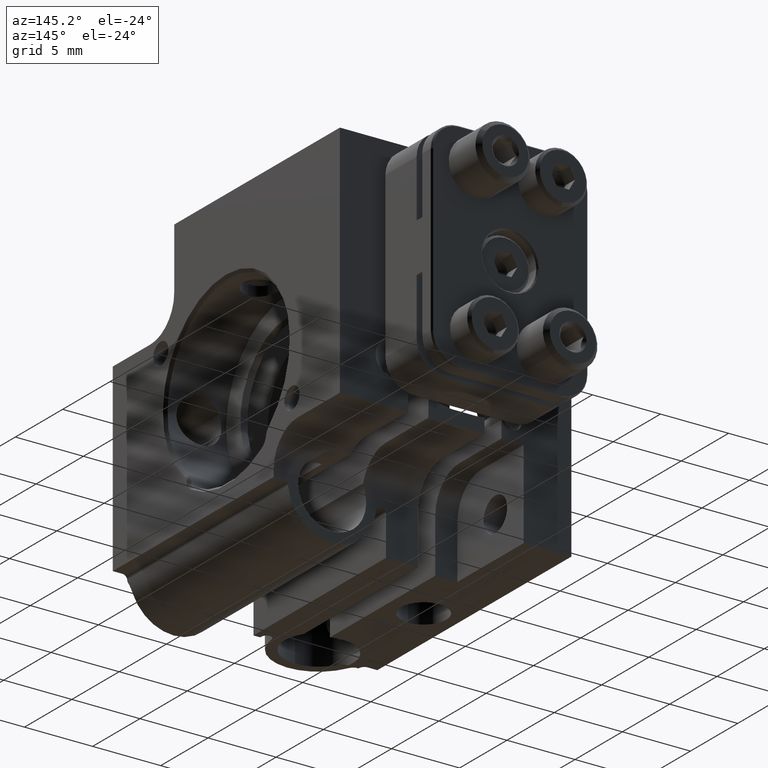
[diagram: clean part render]
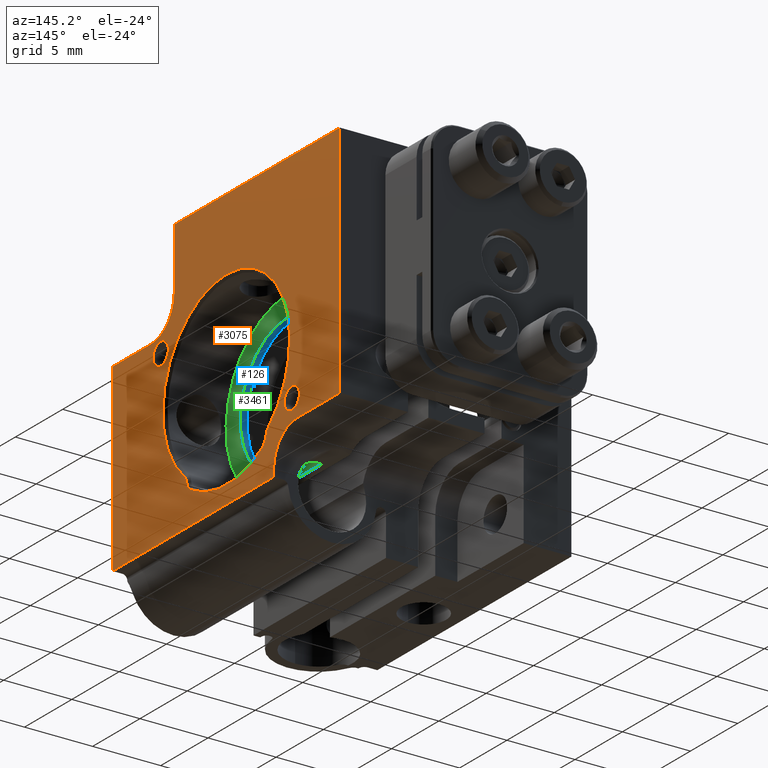
[diagram: same view with three faces highlighted in distinct colors, each labeled with its STEP entity id]
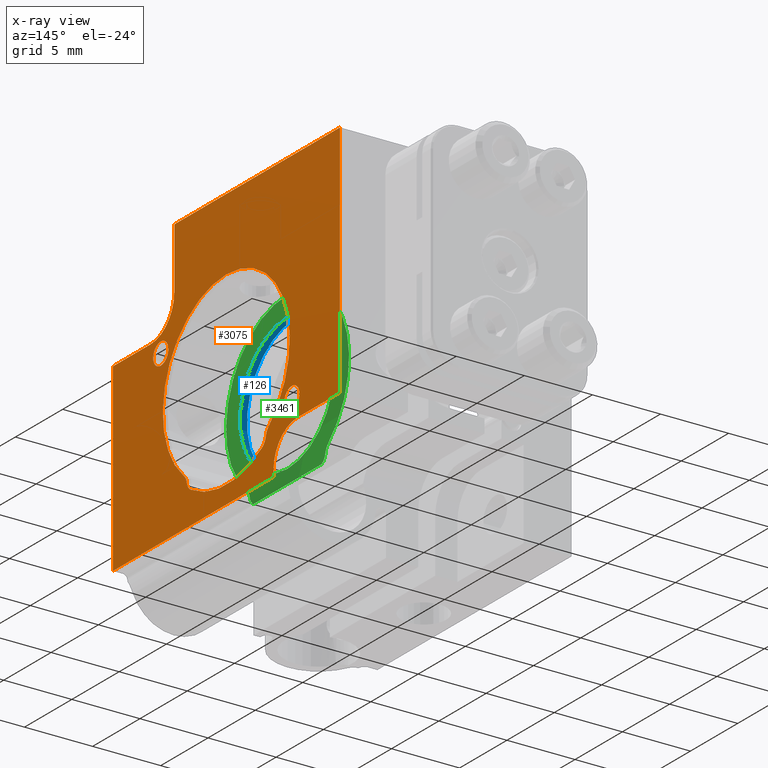
[diagram: x-ray of the same camera — body ghosted, the three highlighted faces saturated]
A machine part, auxiliary view with three faces highlighted in distinct colors.
The next image is the same camera in x-ray (body ghosted, the three faces saturated) — at least one of them is partly hidden behind the body in this view.
Their STEP definitions:

[orange] entity #3075 — the highlighted planar face has unit normal (1, 0, -0).
#40 = EDGE_CURVE ( 'NONE', #2702, #11322, #1248, .T. ) ;
#102 = CIRCLE ( 'NONE', #1552, 0.7999999999999986011 ) ;
#157 = DIRECTION ( 'NONE',  ( 0.000000000000000000, -7.228014483236695816E-17, 1.000000000000000000 ) ) ;
#194 = VERTEX_POINT ( 'NONE', #2159 ) ;
#220 = FACE_OUTER_BOUND ( 'NONE', #3598, .T. ) ;
#297 = CARTESIAN_POINT ( 'NONE',  ( 8.500000000000000000, -0.6422176136940526137, 8.687646340299309600 ) ) ;
#305 = EDGE_CURVE ( 'NONE', #5641, #10667, #6396, .T. ) ;
#319 = VERTEX_POINT ( 'NONE', #4273 ) ;
#338 = EDGE_LOOP ( 'NONE', ( #4403, #1269 ) ) ;
#504 = ORIENTED_EDGE ( 'NONE', *, *, #1851, .T. ) ;
#549 = DIRECTION ( 'NONE',  ( 0.000000000000000000, 0.000000000000000000, 1.000000000000000000 ) ) ;
#564 = DIRECTION ( 'NONE',  ( 0.000000000000000000, -1.826024711554531645E-15, 1.000000000000000000 ) ) ;
#606 = AXIS2_PLACEMENT_3D ( 'NONE', #6366, #7400, #6484 ) ;
#661 = CARTESIAN_POINT ( 'NONE',  ( 8.500000000000000000, 18.85778238630594572, 15.18764634029931138 ) ) ;
#702 = CARTESIAN_POINT ( 'NONE',  ( 8.500000000000000000, 18.85778238630594927, 12.68764634029931138 ) ) ;
#703 = DIRECTION ( 'NONE',  ( 0.000000000000000000, 3.652049423109063291E-15, 1.000000000000000000 ) ) ;
#847 = VERTEX_POINT ( 'NONE', #7446 ) ;
#865 = DIRECTION ( 'NONE',  ( 0.000000000000000000, 0.000000000000000000, 1.000000000000000000 ) ) ;
#900 = CARTESIAN_POINT ( 'NONE',  ( 8.500000000000000000, 16.33677353748944938, 15.07875633278121086 ) ) ;
#1212 = VERTEX_POINT ( 'NONE', #3388 ) ;
#1248 = LINE ( 'NONE', #6265, #1401 ) ;
#1269 = ORIENTED_EDGE ( 'NONE', *, *, #8425, .F. ) ;
#1369 = EDGE_CURVE ( 'NONE', #5864, #9077, #7853, .T. ) ;
#1401 = VECTOR ( 'NONE', #157, 1000.000000000000000 ) ;
#1453 = CARTESIAN_POINT ( 'NONE',  ( 8.500000000000000000, 23.35778238630594572, 15.18764634029931138 ) ) ;
#1461 = DIRECTION ( 'NONE',  ( 1.000000000000000000, 0.000000000000000000, 0.000000000000000000 ) ) ;
#1463 = CARTESIAN_POINT ( 'NONE',  ( 8.500000000000000000, 23.35778238630594572, 32.68764634029930960 ) ) ;
#1551 = DIRECTION ( 'NONE',  ( -1.000000000000000000, -0.000000000000000000, -0.000000000000000000 ) ) ;
#1552 = AXIS2_PLACEMENT_3D ( 'NONE', #2201, #11264, #8583 ) ;
#1560 = EDGE_CURVE ( 'NONE', #1979, #5058, #4724, .T. ) ;
#1593 = AXIS2_PLACEMENT_3D ( 'NONE', #702, #8530, #8473 ) ;
#1643 = EDGE_CURVE ( 'NONE', #7360, #5043, #10438, .T. ) ;
#1676 = CARTESIAN_POINT ( 'NONE',  ( 8.500000000000000000, 11.35778238630594572, 20.68764634029930960 ) ) ;
#1720 = CARTESIAN_POINT ( 'NONE',  ( 8.500000000000000000, 16.35778238630594572, 12.18764634029930782 ) ) ;
#1755 = CARTESIAN_POINT ( 'NONE',  ( 8.500000000000000000, 7.169187189949187022, 15.20234530718232691 ) ) ;
#1807 = AXIS2_PLACEMENT_3D ( 'NONE', #7922, #9510, #3341 ) ;
#1851 = EDGE_CURVE ( 'NONE', #9077, #10108, #4902, .T. ) ;
#1944 = DIRECTION ( 'NONE',  ( 1.000000000000000000, 0.000000000000000000, 0.000000000000000000 ) ) ;
#1979 = VERTEX_POINT ( 'NONE', #5995 ) ;
#1988 = DIRECTION ( 'NONE',  ( 0.000000000000000000, 0.000000000000000000, 1.000000000000000000 ) ) ;
#1998 = EDGE_CURVE ( 'NONE', #5058, #10466, #9617, .T. ) ;
#2003 = DIRECTION ( 'NONE',  ( 0.000000000000000000, 0.000000000000000000, 1.000000000000000000 ) ) ;
#2036 = VERTEX_POINT ( 'NONE', #4430 ) ;
#2159 = CARTESIAN_POINT ( 'NONE',  ( 8.500000000000000000, 18.28598561658146338, 15.88764634029933198 ) ) ;
#2164 = DIRECTION ( 'NONE',  ( 1.000000000000000000, 0.000000000000000000, -0.000000000000000000 ) ) ;
#2201 = CARTESIAN_POINT ( 'NONE',  ( 8.500000000000000000, 6.378791235122443837, 15.07875633278121086 ) ) ;
#2226 = CARTESIAN_POINT ( 'NONE',  ( 8.500000000000000000, 11.35778238630594572, 27.38764634029931244 ) ) ;
#2293 = ORIENTED_EDGE ( 'NONE', *, *, #10298, .T. ) ;
#2317 = CARTESIAN_POINT ( 'NONE',  ( 8.500000000000000000, 3.357782386305949274, 28.18764634029930960 ) ) ;
#2362 = CIRCLE ( 'NONE', #1807, 0.7999999999999986011 ) ;
#2365 = CARTESIAN_POINT ( 'NONE',  ( 8.500000000000000000, 23.35778238630594572, 32.68764634029930960 ) ) ;
#2498 = DIRECTION ( 'NONE',  ( 0.000000000000000000, 1.812397661468305672E-15, 1.000000000000000000 ) ) ;
#2546 = CARTESIAN_POINT ( 'NONE',  ( 8.500000000000000000, 15.10178238630594549, 14.53764926712927341 ) ) ;
#2591 = ORIENTED_EDGE ( 'NONE', *, *, #305, .T. ) ;
#2651 = EDGE_LOOP ( 'NONE', ( #6248, #8078 ) ) ;
#2679 = ORIENTED_EDGE ( 'NONE', *, *, #1643, .F. ) ;
#2702 = VERTEX_POINT ( 'NONE', #1453 ) ;
#3075 = ADVANCED_FACE ( 'NONE', ( #10048, #4762, #10854, #220 ), #6450, .T. ) ;
#3257 = AXIS2_PLACEMENT_3D ( 'NONE', #9933, #2164, #1988 ) ;
#3341 = DIRECTION ( 'NONE',  ( 0.000000000000000000, 0.000000000000000000, 1.000000000000000000 ) ) ;
#3388 = CARTESIAN_POINT ( 'NONE',  ( 8.500000000000000000, 7.613782386305946837, 14.53764926712927341 ) ) ;
#3598 = EDGE_LOOP ( 'NONE', ( #3644, #2293, #8773, #2679, #7662, #6142, #4860, #7772, #9292, #4636 ) ) ;
#3644 = ORIENTED_EDGE ( 'NONE', *, *, #7628, .F. ) ;
#3699 = EDGE_CURVE ( 'NONE', #319, #5213, #2362, .T. ) ;
#3849 = CARTESIAN_POINT ( 'NONE',  ( 8.500000000000000000, 11.35778238630594572, 25.68764634029930960 ) ) ;
#3863 = DIRECTION ( 'NONE',  ( 0.000000000000000000, 7.228014483236695816E-17, -1.000000000000000000 ) ) ;
#3924 = CIRCLE ( 'NONE', #5772, 0.9500000000000011768 ) ;
#4165 = AXIS2_PLACEMENT_3D ( 'NONE', #1676, #11175, #2498 ) ;
#4182 = CARTESIAN_POINT ( 'NONE',  ( 8.500000000000000000, 8.107782386305945721, 15.34910721428365221 ) ) ;
#4273 = CARTESIAN_POINT ( 'NONE',  ( 8.500000000000000000, 4.429579156030396092, 23.88764634029924139 ) ) ;
#4403 = ORIENTED_EDGE ( 'NONE', *, *, #8557, .F. ) ;
#4414 = EDGE_CURVE ( 'NONE', #10108, #1212, #10102, .T. ) ;
#4430 = CARTESIAN_POINT ( 'NONE',  ( 8.500000000000000000, -0.6422176136940543900, 12.18764634029930605 ) ) ;
#4442 = VECTOR ( 'NONE', #10983, 1000.000000000000000 ) ;
#4450 = VECTOR ( 'NONE', #8592, 1000.000000000000000 ) ;
#4515 = ORIENTED_EDGE ( 'NONE', *, *, #6883, .T. ) ;
#4636 = ORIENTED_EDGE ( 'NONE', *, *, #1560, .F. ) ;
#4652 = DIRECTION ( 'NONE',  ( 0.000000000000000000, 0.000000000000000000, 1.000000000000000000 ) ) ;
#4676 = AXIS2_PLACEMENT_3D ( 'NONE', #9834, #1944, #2003 ) ;
#4715 = LINE ( 'NONE', #9891, #4442 ) ;
#4724 = CIRCLE ( 'NONE', #5646, 2.499999999999998668 ) ;
#4762 = FACE_BOUND ( 'NONE', #2651, .T. ) ;
#4769 = DIRECTION ( 'NONE',  ( -1.000000000000000000, -0.000000000000000000, -0.000000000000000000 ) ) ;
#4860 = ORIENTED_EDGE ( 'NONE', *, *, #40, .T. ) ;
#4902 = CIRCLE ( 'NONE', #11311, 0.9500000000000011768 ) ;
#4956 = EDGE_CURVE ( 'NONE', #11322, #10466, #5773, .T. ) ;
#4964 = EDGE_CURVE ( 'NONE', #9119, #7360, #8253, .T. ) ;
#5028 = CIRCLE ( 'NONE', #4676, 0.7999999999999986011 ) ;
#5043 = VERTEX_POINT ( 'NONE', #1720 ) ;
#5058 = VERTEX_POINT ( 'NONE', #11325 ) ;
#5094 = DIRECTION ( 'NONE',  ( -1.000000000000000000, -0.000000000000000000, -0.000000000000000000 ) ) ;
#5203 = DIRECTION ( 'NONE',  ( 1.000000000000000000, 0.000000000000000000, 0.000000000000000000 ) ) ;
#5210 = AXIS2_PLACEMENT_3D ( 'NONE', #9554, #10462, #865 ) ;
#5213 = VERTEX_POINT ( 'NONE', #8259 ) ;
#5351 = DIRECTION ( 'NONE',  ( 0.000000000000000000, 0.000000000000000000, 1.000000000000000000 ) ) ;
#5391 = ORIENTED_EDGE ( 'NONE', *, *, #9483, .T. ) ;
#5468 = VECTOR ( 'NONE', #9391, 1000.000000000000000 ) ;
#5641 = VERTEX_POINT ( 'NONE', #9996 ) ;
#5646 = AXIS2_PLACEMENT_3D ( 'NONE', #2317, #1461, #549 ) ;
#5772 = AXIS2_PLACEMENT_3D ( 'NONE', #4182, #5094, #564 ) ;
#5773 = LINE ( 'NONE', #2365, #5468 ) ;
#5864 = VERTEX_POINT ( 'NONE', #7290 ) ;
#5883 = EDGE_CURVE ( 'NONE', #5213, #319, #7059, .T. ) ;
#5941 = LINE ( 'NONE', #9448, #4450 ) ;
#5995 = CARTESIAN_POINT ( 'NONE',  ( 8.500000000000000000, 3.357782386305949274, 25.68764634029930960 ) ) ;
#6142 = ORIENTED_EDGE ( 'NONE', *, *, #6798, .F. ) ;
#6158 = VERTEX_POINT ( 'NONE', #1755 ) ;
#6174 = CARTESIAN_POINT ( 'NONE',  ( 8.500000000000000000, 5.857782386305942168, 20.68764634029931671 ) ) ;
#6248 = ORIENTED_EDGE ( 'NONE', *, *, #5883, .F. ) ;
#6265 = CARTESIAN_POINT ( 'NONE',  ( 8.500000000000000000, 23.35778238630594572, 8.687646340299309600 ) ) ;
#6266 = CARTESIAN_POINT ( 'NONE',  ( 8.500000000000000000, 16.35778238630594572, 20.68764634029930960 ) ) ;
#6366 = CARTESIAN_POINT ( 'NONE',  ( 8.500000000000000000, 4.429579156030396092, 24.68764634029924210 ) ) ;
#6396 = CIRCLE ( 'NONE', #4165, 6.700000000000001066 ) ;
#6450 = PLANE ( 'NONE',  #3257 ) ;
#6484 = DIRECTION ( 'NONE',  ( 0.000000000000000000, 0.000000000000000000, 1.000000000000000000 ) ) ;
#6530 = LINE ( 'NONE', #297, #9306 ) ;
#6579 = CARTESIAN_POINT ( 'NONE',  ( 8.500000000000000000, -0.6422176136940509483, 25.68764634029930960 ) ) ;
#6798 = EDGE_CURVE ( 'NONE', #2702, #9119, #5941, .T. ) ;
#6883 = EDGE_CURVE ( 'NONE', #10667, #5864, #10887, .T. ) ;
#7059 = CIRCLE ( 'NONE', #606, 0.7999999999999986011 ) ;
#7118 = CARTESIAN_POINT ( 'NONE',  ( 8.500000000000000000, 11.35778238630594572, 20.68764634029930960 ) ) ;
#7290 = CARTESIAN_POINT ( 'NONE',  ( 8.500000000000000000, 15.80568114802987445, 15.67703793358314002 ) ) ;
#7360 = VERTEX_POINT ( 'NONE', #7668 ) ;
#7400 = DIRECTION ( 'NONE',  ( 1.000000000000000000, 0.000000000000000000, 0.000000000000000000 ) ) ;
#7416 = AXIS2_PLACEMENT_3D ( 'NONE', #7118, #10591, #5351 ) ;
#7435 = VECTOR ( 'NONE', #11039, 1000.000000000000000 ) ;
#7446 = CARTESIAN_POINT ( 'NONE',  ( 8.500000000000000000, 18.28598561658146338, 17.48764634029932807 ) ) ;
#7628 = EDGE_CURVE ( 'NONE', #8657, #1979, #8401, .T. ) ;
#7662 = ORIENTED_EDGE ( 'NONE', *, *, #4964, .F. ) ;
#7668 = CARTESIAN_POINT ( 'NONE',  ( 8.500000000000000000, 16.35778238630594572, 12.68764634029931138 ) ) ;
#7770 = EDGE_CURVE ( 'NONE', #1212, #6158, #3924, .T. ) ;
#7772 = ORIENTED_EDGE ( 'NONE', *, *, #4956, .T. ) ;
#7853 = CIRCLE ( 'NONE', #8230, 0.7999999999999986011 ) ;
#7922 = CARTESIAN_POINT ( 'NONE',  ( 8.500000000000000000, 4.429579156030396092, 24.68764634029924210 ) ) ;
#8061 = VECTOR ( 'NONE', #9758, 1000.000000000000000 ) ;
#8078 = ORIENTED_EDGE ( 'NONE', *, *, #3699, .F. ) ;
#8230 = AXIS2_PLACEMENT_3D ( 'NONE', #900, #5203, #8659 ) ;
#8253 = CIRCLE ( 'NONE', #1593, 2.500000000000000444 ) ;
#8259 = CARTESIAN_POINT ( 'NONE',  ( 8.500000000000000000, 4.429579156030396092, 25.48764634029923926 ) ) ;
#8401 = LINE ( 'NONE', #3849, #7435 ) ;
#8425 = EDGE_CURVE ( 'NONE', #194, #847, #10922, .T. ) ;
#8473 = DIRECTION ( 'NONE',  ( 0.000000000000000000, 0.000000000000000000, 1.000000000000000000 ) ) ;
#8477 = CARTESIAN_POINT ( 'NONE',  ( 8.500000000000000000, 14.60778238630594572, 15.34910721428365221 ) ) ;
#8526 = CARTESIAN_POINT ( 'NONE',  ( 8.500000000000000000, 5.857782386305952826, 32.68764634029930249 ) ) ;
#8530 = DIRECTION ( 'NONE',  ( 1.000000000000000000, 0.000000000000000000, 0.000000000000000000 ) ) ;
#8557 = EDGE_CURVE ( 'NONE', #847, #194, #5028, .T. ) ;
#8583 = DIRECTION ( 'NONE',  ( 0.000000000000000000, 0.000000000000000000, 1.000000000000000000 ) ) ;
#8592 = DIRECTION ( 'NONE',  ( 0.000000000000000000, -1.000000000000000000, -1.927470528863118556E-16 ) ) ;
#8657 = VERTEX_POINT ( 'NONE', #6579 ) ;
#8659 = DIRECTION ( 'NONE',  ( 0.000000000000000000, 0.000000000000000000, 1.000000000000000000 ) ) ;
#8750 = DIRECTION ( 'NONE',  ( 0.000000000000000000, 9.637352644315596722E-16, 1.000000000000000000 ) ) ;
#8773 = ORIENTED_EDGE ( 'NONE', *, *, #10710, .F. ) ;
#8890 = ORIENTED_EDGE ( 'NONE', *, *, #4414, .T. ) ;
#9077 = VERTEX_POINT ( 'NONE', #11290 ) ;
#9119 = VERTEX_POINT ( 'NONE', #661 ) ;
#9292 = ORIENTED_EDGE ( 'NONE', *, *, #1998, .F. ) ;
#9306 = VECTOR ( 'NONE', #3863, 1000.000000000000000 ) ;
#9391 = DIRECTION ( 'NONE',  ( 0.000000000000000000, -1.000000000000000000, 0.000000000000000000 ) ) ;
#9448 = CARTESIAN_POINT ( 'NONE',  ( 8.500000000000000000, 11.35778238630594750, 15.18764634029930782 ) ) ;
#9483 = EDGE_CURVE ( 'NONE', #6158, #5641, #102, .T. ) ;
#9510 = DIRECTION ( 'NONE',  ( 1.000000000000000000, 0.000000000000000000, 0.000000000000000000 ) ) ;
#9554 = CARTESIAN_POINT ( 'NONE',  ( 8.500000000000000000, 18.28598561658146338, 16.68764634029933092 ) ) ;
#9617 = LINE ( 'NONE', #6174, #9865 ) ;
#9758 = DIRECTION ( 'NONE',  ( 0.000000000000000000, 2.168404344971008868E-16, -1.000000000000000000 ) ) ;
#9834 = CARTESIAN_POINT ( 'NONE',  ( 8.500000000000000000, 18.28598561658146338, 16.68764634029933092 ) ) ;
#9865 = VECTOR ( 'NONE', #8750, 1000.000000000000000 ) ;
#9891 = CARTESIAN_POINT ( 'NONE',  ( 8.500000000000000000, 11.35778238630594572, 12.18764634029930782 ) ) ;
#9933 = CARTESIAN_POINT ( 'NONE',  ( 8.500000000000000000, 11.35778238630594572, 20.68764634029930960 ) ) ;
#9996 = CARTESIAN_POINT ( 'NONE',  ( 8.500000000000000000, 6.909883624582016992, 15.67703793358314002 ) ) ;
#10048 = FACE_BOUND ( 'NONE', #338, .T. ) ;
#10102 = CIRCLE ( 'NONE', #11017, 7.200000000000001954 ) ;
#10108 = VERTEX_POINT ( 'NONE', #2546 ) ;
#10298 = EDGE_CURVE ( 'NONE', #8657, #2036, #6530, .T. ) ;
#10438 = LINE ( 'NONE', #6266, #8061 ) ;
#10462 = DIRECTION ( 'NONE',  ( 1.000000000000000000, 0.000000000000000000, 0.000000000000000000 ) ) ;
#10466 = VERTEX_POINT ( 'NONE', #8526 ) ;
#10591 = DIRECTION ( 'NONE',  ( -1.000000000000000000, -0.000000000000000000, -0.000000000000000000 ) ) ;
#10667 = VERTEX_POINT ( 'NONE', #2226 ) ;
#10710 = EDGE_CURVE ( 'NONE', #5043, #2036, #4715, .T. ) ;
#10749 = ORIENTED_EDGE ( 'NONE', *, *, #1369, .T. ) ;
#10809 = CARTESIAN_POINT ( 'NONE',  ( 8.500000000000000000, 11.35778238630594572, 20.68764634029930960 ) ) ;
#10854 = FACE_BOUND ( 'NONE', #11265, .T. ) ;
#10887 = CIRCLE ( 'NONE', #7416, 6.700000000000001066 ) ;
#10922 = CIRCLE ( 'NONE', #5210, 0.7999999999999986011 ) ;
#10983 = DIRECTION ( 'NONE',  ( 0.000000000000000000, -1.000000000000000000, -6.829619984160658046E-17 ) ) ;
#11017 = AXIS2_PLACEMENT_3D ( 'NONE', #10809, #4769, #4652 ) ;
#11039 = DIRECTION ( 'NONE',  ( 0.000000000000000000, 1.000000000000000000, 0.000000000000000000 ) ) ;
#11153 = ORIENTED_EDGE ( 'NONE', *, *, #7770, .T. ) ;
#11175 = DIRECTION ( 'NONE',  ( -1.000000000000000000, -0.000000000000000000, -0.000000000000000000 ) ) ;
#11264 = DIRECTION ( 'NONE',  ( 1.000000000000000000, 0.000000000000000000, 0.000000000000000000 ) ) ;
#11265 = EDGE_LOOP ( 'NONE', ( #504, #8890, #11153, #5391, #2591, #4515, #10749 ) ) ;
#11290 = CARTESIAN_POINT ( 'NONE',  ( 8.500000000000000000, 15.54637758266270353, 15.20234530718232691 ) ) ;
#11311 = AXIS2_PLACEMENT_3D ( 'NONE', #8477, #1551, #703 ) ;
#11322 = VERTEX_POINT ( 'NONE', #1463 ) ;
#11325 = CARTESIAN_POINT ( 'NONE',  ( 8.500000000000000000, 5.857782386305948386, 28.18764634029930605 ) ) ;

[blue] entity #126 — the highlighted cylindrical surface (partial cylindrical patch) has radius 5 mm, axis along (1, 0, 0).
#52 = ORIENTED_EDGE ( 'NONE', *, *, #8602, .T. ) ;
#126 = ADVANCED_FACE ( 'NONE', ( #7583 ), #434, .F. ) ;
#347 = CARTESIAN_POINT ( 'NONE',  ( 4.000000000000000000, 11.35778238630594572, 15.68764634029930960 ) ) ;
#434 = CYLINDRICAL_SURFACE ( 'NONE', #6380, 5.000000000000000888 ) ;
#602 = DIRECTION ( 'NONE',  ( 1.000000000000000000, 0.000000000000000000, 0.000000000000000000 ) ) ;
#977 = DIRECTION ( 'NONE',  ( 1.000000000000000000, 0.000000000000000000, 0.000000000000000000 ) ) ;
#1165 = EDGE_CURVE ( 'NONE', #1860, #8096, #6931, .T. ) ;
#1860 = VERTEX_POINT ( 'NONE', #4090 ) ;
#2075 = EDGE_CURVE ( 'NONE', #8096, #10772, #10877, .T. ) ;
#2551 = DIRECTION ( 'NONE',  ( 1.000000000000000000, 0.000000000000000000, 0.000000000000000000 ) ) ;
#2618 = ORIENTED_EDGE ( 'NONE', *, *, #1165, .F. ) ;
#3057 = AXIS2_PLACEMENT_3D ( 'NONE', #7962, #977, #10573 ) ;
#3242 = CARTESIAN_POINT ( 'NONE',  ( 3.499999999999999556, 11.35778238630594572, 15.68764634029930960 ) ) ;
#3400 = DIRECTION ( 'NONE',  ( 0.000000000000000000, 0.000000000000000000, 1.000000000000000000 ) ) ;
#4090 = CARTESIAN_POINT ( 'NONE',  ( 3.499999999999999556, 11.35778238630594572, 25.68764634029930960 ) ) ;
#4207 = ORIENTED_EDGE ( 'NONE', *, *, #4565, .T. ) ;
#4565 = EDGE_CURVE ( 'NONE', #8800, #10772, #7365, .T. ) ;
#4863 = DIRECTION ( 'NONE',  ( 0.000000000000000000, 0.000000000000000000, 1.000000000000000000 ) ) ;
#5959 = VECTOR ( 'NONE', #7329, 1000.000000000000000 ) ;
#5969 = CARTESIAN_POINT ( 'NONE',  ( 4.000000000000000000, 11.35778238630594572, 25.68764634029930960 ) ) ;
#6380 = AXIS2_PLACEMENT_3D ( 'NONE', #10098, #602, #4863 ) ;
#6931 = CIRCLE ( 'NONE', #3057, 5.000000000000000888 ) ;
#7329 = DIRECTION ( 'NONE',  ( 1.000000000000000000, 0.000000000000000000, 0.000000000000000000 ) ) ;
#7365 = CIRCLE ( 'NONE', #10092, 5.000000000000000888 ) ;
#7392 = DIRECTION ( 'NONE',  ( 1.000000000000000000, 0.000000000000000000, 0.000000000000000000 ) ) ;
#7583 = FACE_OUTER_BOUND ( 'NONE', #10610, .T. ) ;
#7962 = CARTESIAN_POINT ( 'NONE',  ( 3.499999999999999556, 11.35778238630594572, 20.68764634029930960 ) ) ;
#8096 = VERTEX_POINT ( 'NONE', #3242 ) ;
#8254 = CARTESIAN_POINT ( 'NONE',  ( -8.000000000000000000, 11.35778238630594572, 25.68764634029930960 ) ) ;
#8396 = CARTESIAN_POINT ( 'NONE',  ( 4.000000000000000000, 11.35778238630594572, 20.68764634029930960 ) ) ;
#8602 = EDGE_CURVE ( 'NONE', #1860, #8800, #10924, .T. ) ;
#8800 = VERTEX_POINT ( 'NONE', #5969 ) ;
#8946 = ORIENTED_EDGE ( 'NONE', *, *, #2075, .F. ) ;
#9822 = VECTOR ( 'NONE', #7392, 1000.000000000000000 ) ;
#10092 = AXIS2_PLACEMENT_3D ( 'NONE', #8396, #2551, #3400 ) ;
#10098 = CARTESIAN_POINT ( 'NONE',  ( -8.000000000000000000, 11.35778238630594572, 20.68764634029930960 ) ) ;
#10573 = DIRECTION ( 'NONE',  ( 0.000000000000000000, 0.000000000000000000, 1.000000000000000000 ) ) ;
#10610 = EDGE_LOOP ( 'NONE', ( #8946, #2618, #52, #4207 ) ) ;
#10698 = CARTESIAN_POINT ( 'NONE',  ( -8.000000000000000000, 11.35778238630594572, 15.68764634029930960 ) ) ;
#10772 = VERTEX_POINT ( 'NONE', #347 ) ;
#10877 = LINE ( 'NONE', #10698, #9822 ) ;
#10924 = LINE ( 'NONE', #8254, #5959 ) ;

[green] entity #3461 — the highlighted planar face has unit normal (1, 0, -0).
#18 = CARTESIAN_POINT ( 'NONE',  ( 4.000000000000000000, 11.35778238630594572, 20.68764634029930960 ) ) ;
#190 = ORIENTED_EDGE ( 'NONE', *, *, #3352, .F. ) ;
#347 = CARTESIAN_POINT ( 'NONE',  ( 4.000000000000000000, 11.35778238630594572, 15.68764634029930960 ) ) ;
#505 = AXIS2_PLACEMENT_3D ( 'NONE', #587, #3118, #10296 ) ;
#587 = CARTESIAN_POINT ( 'NONE',  ( 4.000000000000000000, 14.60778238630594572, 15.34910721428365221 ) ) ;
#610 = VERTEX_POINT ( 'NONE', #4345 ) ;
#774 = DIRECTION ( 'NONE',  ( -1.000000000000000000, -0.000000000000000000, -0.000000000000000000 ) ) ;
#812 = DIRECTION ( 'NONE',  ( 1.000000000000000000, 0.000000000000000000, 0.000000000000000000 ) ) ;
#1099 = CARTESIAN_POINT ( 'NONE',  ( 4.000000000000000000, 14.99778238630594451, 14.70848251916177496 ) ) ;
#1112 = CARTESIAN_POINT ( 'NONE',  ( 4.000000000000000000, 15.34877859395601618, 15.23324255078260414 ) ) ;
#1158 = CIRCLE ( 'NONE', #6866, 0.7499999999999988898 ) ;
#1597 = EDGE_LOOP ( 'NONE', ( #6602, #2205 ) ) ;
#1670 = CARTESIAN_POINT ( 'NONE',  ( 4.000000000000000000, 7.717782386305946929, 14.70848251916177496 ) ) ;
#1816 = DIRECTION ( 'NONE',  ( 0.000000000000000000, 0.000000000000000000, 1.000000000000000000 ) ) ;
#1875 = DIRECTION ( 'NONE',  ( 0.000000000000000000, 0.000000000000000000, 1.000000000000000000 ) ) ;
#1879 = VECTOR ( 'NONE', #9173, 1000.000000000000000 ) ;
#1908 = FACE_OUTER_BOUND ( 'NONE', #2398, .T. ) ;
#1938 = EDGE_CURVE ( 'NONE', #9688, #2878, #10402, .T. ) ;
#1971 = AXIS2_PLACEMENT_3D ( 'NONE', #18, #812, #4263 ) ;
#2205 = ORIENTED_EDGE ( 'NONE', *, *, #4040, .F. ) ;
#2316 = VERTEX_POINT ( 'NONE', #7781 ) ;
#2398 = EDGE_LOOP ( 'NONE', ( #6250, #9325, #6293, #9203, #190, #11046, #9726, #2664, #10925 ) ) ;
#2470 = DIRECTION ( 'NONE',  ( 0.000000000000000000, 0.000000000000000000, 1.000000000000000000 ) ) ;
#2551 = DIRECTION ( 'NONE',  ( 1.000000000000000000, 0.000000000000000000, 0.000000000000000000 ) ) ;
#2560 = EDGE_CURVE ( 'NONE', #2316, #8485, #9971, .T. ) ;
#2664 = ORIENTED_EDGE ( 'NONE', *, *, #1938, .T. ) ;
#2789 = EDGE_CURVE ( 'NONE', #6707, #610, #9881, .T. ) ;
#2878 = VERTEX_POINT ( 'NONE', #1112 ) ;
#3118 = DIRECTION ( 'NONE',  ( 1.000000000000000000, 0.000000000000000000, 0.000000000000000000 ) ) ;
#3277 = CIRCLE ( 'NONE', #10821, 1.000000000000000888 ) ;
#3333 = AXIS2_PLACEMENT_3D ( 'NONE', #9707, #5387, #1816 ) ;
#3352 = EDGE_CURVE ( 'NONE', #2316, #6843, #4559, .T. ) ;
#3400 = DIRECTION ( 'NONE',  ( 0.000000000000000000, 0.000000000000000000, 1.000000000000000000 ) ) ;
#3461 = ADVANCED_FACE ( 'NONE', ( #7463, #1908 ), #4689, .T. ) ;
#3472 = DIRECTION ( 'NONE',  ( 0.000000000000000000, 0.000000000000000000, 1.000000000000000000 ) ) ;
#3539 = DIRECTION ( 'NONE',  ( 0.000000000000000000, 0.000000000000000000, 1.000000000000000000 ) ) ;
#3544 = AXIS2_PLACEMENT_3D ( 'NONE', #9550, #7905, #2470 ) ;
#3625 = EDGE_CURVE ( 'NONE', #2878, #6707, #3277, .T. ) ;
#4020 = CIRCLE ( 'NONE', #7719, 5.000000000000000888 ) ;
#4040 = EDGE_CURVE ( 'NONE', #10772, #8800, #4020, .T. ) ;
#4041 = EDGE_CURVE ( 'NONE', #7229, #11004, #10639, .T. ) ;
#4044 = DIRECTION ( 'NONE',  ( -1.000000000000000000, -0.000000000000000000, -0.000000000000000000 ) ) ;
#4263 = DIRECTION ( 'NONE',  ( 0.000000000000000000, 0.000000000000000000, 1.000000000000000000 ) ) ;
#4345 = CARTESIAN_POINT ( 'NONE',  ( 4.000000000000000000, 11.35778238630594572, 27.18764634029931315 ) ) ;
#4391 = CARTESIAN_POINT ( 'NONE',  ( 4.000000000000000000, 11.35778238630594572, 20.68764634029930960 ) ) ;
#4559 = CIRCLE ( 'NONE', #10422, 7.000000000000002665 ) ;
#4565 = EDGE_CURVE ( 'NONE', #8800, #10772, #7365, .T. ) ;
#4689 = PLANE ( 'NONE',  #9889 ) ;
#5197 = CIRCLE ( 'NONE', #3333, 7.000000000000002665 ) ;
#5387 = DIRECTION ( 'NONE',  ( -1.000000000000000000, -0.000000000000000000, -0.000000000000000000 ) ) ;
#5524 = EDGE_CURVE ( 'NONE', #11004, #6843, #1158, .T. ) ;
#5607 = CARTESIAN_POINT ( 'NONE',  ( 4.000000000000000000, 11.35778238630594572, 20.68764634029930960 ) ) ;
#5969 = CARTESIAN_POINT ( 'NONE',  ( 4.000000000000000000, 11.35778238630594572, 25.68764634029930960 ) ) ;
#6004 = EDGE_CURVE ( 'NONE', #610, #7229, #9253, .T. ) ;
#6181 = EDGE_CURVE ( 'NONE', #9688, #8485, #5197, .T. ) ;
#6204 = CARTESIAN_POINT ( 'NONE',  ( 4.000000000000000000, 11.35778238630594572, 20.68764634029930960 ) ) ;
#6250 = ORIENTED_EDGE ( 'NONE', *, *, #2789, .T. ) ;
#6277 = CARTESIAN_POINT ( 'NONE',  ( 4.000000000000000000, 8.107782386305945721, 15.34910721428365221 ) ) ;
#6293 = ORIENTED_EDGE ( 'NONE', *, *, #4041, .T. ) ;
#6602 = ORIENTED_EDGE ( 'NONE', *, *, #4565, .F. ) ;
#6707 = VERTEX_POINT ( 'NONE', #10778 ) ;
#6843 = VERTEX_POINT ( 'NONE', #1670 ) ;
#6866 = AXIS2_PLACEMENT_3D ( 'NONE', #6277, #9769, #1875 ) ;
#7021 = DIRECTION ( 'NONE',  ( 1.000000000000000000, 0.000000000000000000, 0.000000000000000000 ) ) ;
#7229 = VERTEX_POINT ( 'NONE', #7417 ) ;
#7353 = CARTESIAN_POINT ( 'NONE',  ( 4.000000000000000000, 7.366786178655874373, 15.23324255078260414 ) ) ;
#7365 = CIRCLE ( 'NONE', #10092, 5.000000000000000888 ) ;
#7401 = CARTESIAN_POINT ( 'NONE',  ( 4.000000000000000000, -0.6422176136940561664, 14.67963349917472726 ) ) ;
#7417 = CARTESIAN_POINT ( 'NONE',  ( 4.000000000000000000, 7.042656721946910281, 15.82660833378362497 ) ) ;
#7463 = FACE_BOUND ( 'NONE', #1597, .T. ) ;
#7719 = AXIS2_PLACEMENT_3D ( 'NONE', #6204, #7021, #9468 ) ;
#7781 = CARTESIAN_POINT ( 'NONE',  ( 4.000000000000000000, 7.765598969373820104, 14.67963349917473082 ) ) ;
#7878 = DIRECTION ( 'NONE',  ( -1.000000000000000000, -0.000000000000000000, -0.000000000000000000 ) ) ;
#7905 = DIRECTION ( 'NONE',  ( 1.000000000000000000, 0.000000000000000000, 0.000000000000000000 ) ) ;
#8396 = CARTESIAN_POINT ( 'NONE',  ( 4.000000000000000000, 11.35778238630594572, 20.68764634029930960 ) ) ;
#8444 = AXIS2_PLACEMENT_3D ( 'NONE', #10489, #774, #3539 ) ;
#8485 = VERTEX_POINT ( 'NONE', #10575 ) ;
#8800 = VERTEX_POINT ( 'NONE', #5969 ) ;
#8944 = DIRECTION ( 'NONE',  ( 1.000000000000000000, 0.000000000000000000, -0.000000000000000000 ) ) ;
#9173 = DIRECTION ( 'NONE',  ( 0.000000000000000000, 1.000000000000000000, 2.048885995248197907E-16 ) ) ;
#9203 = ORIENTED_EDGE ( 'NONE', *, *, #5524, .T. ) ;
#9253 = CIRCLE ( 'NONE', #3544, 6.500000000000002665 ) ;
#9288 = CARTESIAN_POINT ( 'NONE',  ( 4.000000000000000000, 16.33677353748944938, 15.07875633278121086 ) ) ;
#9325 = ORIENTED_EDGE ( 'NONE', *, *, #6004, .T. ) ;
#9468 = DIRECTION ( 'NONE',  ( 0.000000000000000000, 0.000000000000000000, 1.000000000000000000 ) ) ;
#9550 = CARTESIAN_POINT ( 'NONE',  ( 4.000000000000000000, 11.35778238630594572, 20.68764634029930960 ) ) ;
#9688 = VERTEX_POINT ( 'NONE', #1099 ) ;
#9707 = CARTESIAN_POINT ( 'NONE',  ( 4.000000000000000000, 11.35778238630594572, 20.68764634029930960 ) ) ;
#9726 = ORIENTED_EDGE ( 'NONE', *, *, #6181, .F. ) ;
#9769 = DIRECTION ( 'NONE',  ( 1.000000000000000000, 0.000000000000000000, 0.000000000000000000 ) ) ;
#9881 = CIRCLE ( 'NONE', #1971, 6.500000000000002665 ) ;
#9889 = AXIS2_PLACEMENT_3D ( 'NONE', #5607, #8944, #10894 ) ;
#9971 = LINE ( 'NONE', #7401, #1879 ) ;
#10092 = AXIS2_PLACEMENT_3D ( 'NONE', #8396, #2551, #3400 ) ;
#10296 = DIRECTION ( 'NONE',  ( 0.000000000000000000, 0.000000000000000000, 1.000000000000000000 ) ) ;
#10301 = DIRECTION ( 'NONE',  ( 0.000000000000000000, -3.469446951953611033E-15, 1.000000000000000000 ) ) ;
#10402 = CIRCLE ( 'NONE', #505, 0.7499999999999988898 ) ;
#10422 = AXIS2_PLACEMENT_3D ( 'NONE', #4391, #7878, #3472 ) ;
#10489 = CARTESIAN_POINT ( 'NONE',  ( 4.000000000000000000, 6.378791235122443837, 15.07875633278121086 ) ) ;
#10575 = CARTESIAN_POINT ( 'NONE',  ( 4.000000000000000000, 14.94996580323807400, 14.67963349917473437 ) ) ;
#10639 = CIRCLE ( 'NONE', #8444, 1.000000000000000888 ) ;
#10772 = VERTEX_POINT ( 'NONE', #347 ) ;
#10778 = CARTESIAN_POINT ( 'NONE',  ( 4.000000000000000000, 15.67290805066498116, 15.82660833378362497 ) ) ;
#10821 = AXIS2_PLACEMENT_3D ( 'NONE', #9288, #4044, #10301 ) ;
#10894 = DIRECTION ( 'NONE',  ( 0.000000000000000000, 0.000000000000000000, 1.000000000000000000 ) ) ;
#10925 = ORIENTED_EDGE ( 'NONE', *, *, #3625, .T. ) ;
#11004 = VERTEX_POINT ( 'NONE', #7353 ) ;
#11046 = ORIENTED_EDGE ( 'NONE', *, *, #2560, .T. ) ;